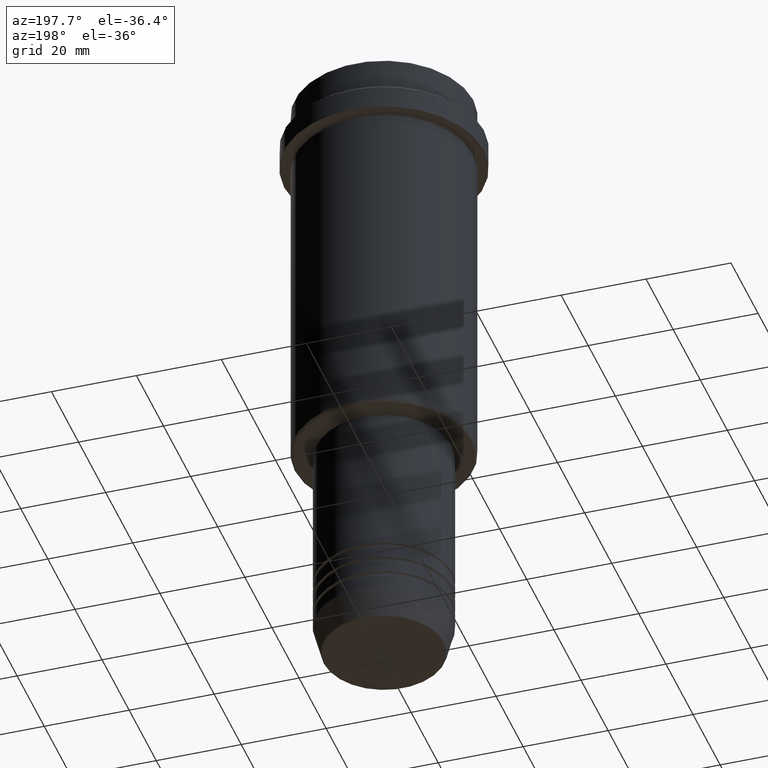
[diagram: clean part render]
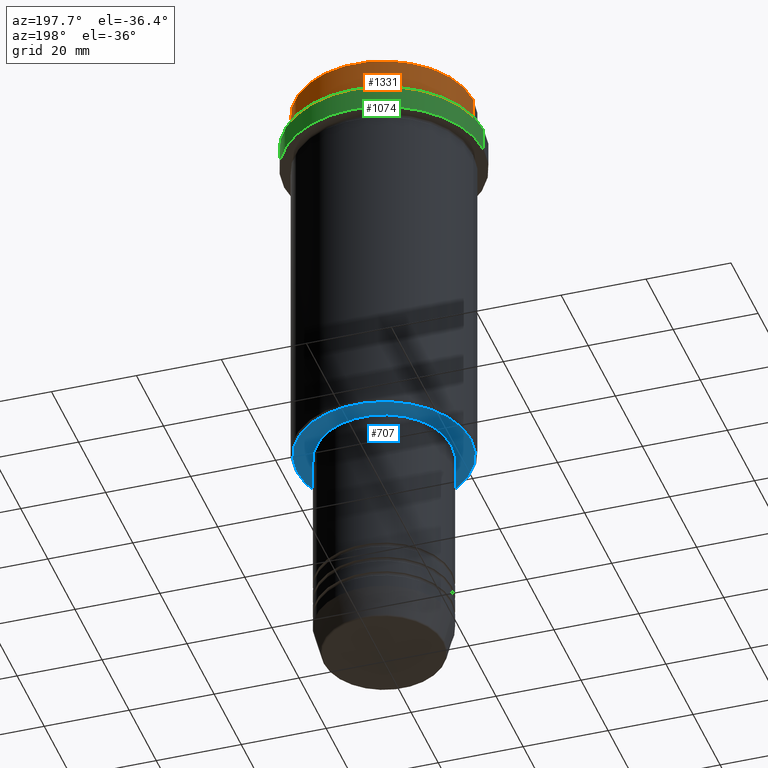
[diagram: same view with three faces highlighted in distinct colors, each labeled with its STEP entity id]
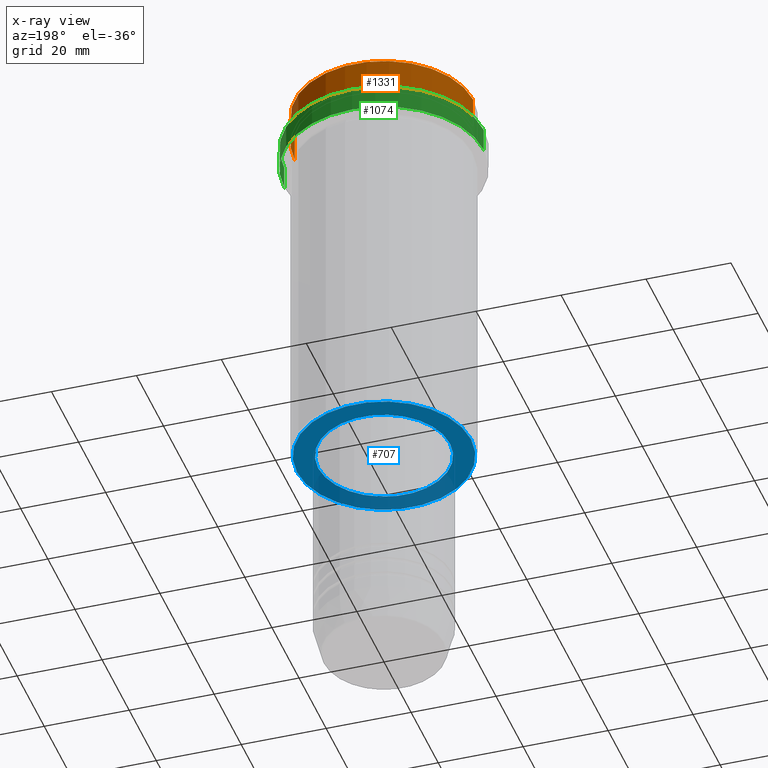
[diagram: x-ray of the same camera — body ghosted, the three highlighted faces saturated]
A machine part, auxiliary view with three faces highlighted in distinct colors.
The next image is the same camera in x-ray (body ghosted, the three faces saturated) — at least one of them is partly hidden behind the body in this view.
Their STEP definitions:

[orange] entity #1331 — the highlighted cylindrical surface (partial cylindrical patch) has radius 21 mm, axis along (-0, -0, 1).
#34 = CYLINDRICAL_SURFACE ( 'NONE', #905, 21.00000000000000000 ) ;
#79 = DIRECTION ( 'NONE',  ( 0.000000000000000000, 0.000000000000000000, -1.000000000000000000 ) ) ;
#93 = DIRECTION ( 'NONE',  ( 1.000000000000000000, 0.000000000000000000, 0.000000000000000000 ) ) ;
#186 = LINE ( 'NONE', #860, #209 ) ;
#190 = DIRECTION ( 'NONE',  ( -0.000000000000000000, -0.000000000000000000, 1.000000000000000000 ) ) ;
#209 = VECTOR ( 'NONE', #1083, 1000.000000000000000 ) ;
#211 = ORIENTED_EDGE ( 'NONE', *, *, #1029, .T. ) ;
#238 = CARTESIAN_POINT ( 'NONE',  ( 21.00000000000000000, 0.000000000000000000, -0.5000000000000108802 ) ) ;
#258 = ORIENTED_EDGE ( 'NONE', *, *, #496, .T. ) ;
#263 = CARTESIAN_POINT ( 'NONE',  ( 21.00000000000000000, 0.000000000000000000, -7.999999999999998224 ) ) ;
#264 = VERTEX_POINT ( 'NONE', #238 ) ;
#321 = CIRCLE ( 'NONE', #734, 21.00000000000000000 ) ;
#391 = CARTESIAN_POINT ( 'NONE',  ( -21.00000000000000000, 2.571758278209441661E-15, -0.5000000000000108802 ) ) ;
#447 = CARTESIAN_POINT ( 'NONE',  ( 0.000000000000000000, 0.000000000000000000, 0.000000000000000000 ) ) ;
#495 = CARTESIAN_POINT ( 'NONE',  ( 0.000000000000000000, 0.000000000000000000, -7.999999999999998224 ) ) ;
#496 = EDGE_CURVE ( 'NONE', #1018, #264, #321, .T. ) ;
#605 = DIRECTION ( 'NONE',  ( -0.000000000000000000, -0.000000000000000000, 1.000000000000000000 ) ) ;
#647 = AXIS2_PLACEMENT_3D ( 'NONE', #495, #944, #93 ) ;
#723 = CARTESIAN_POINT ( 'NONE',  ( 0.000000000000000000, 0.000000000000000000, -0.5000000000000108802 ) ) ;
#725 = CARTESIAN_POINT ( 'NONE',  ( -21.00000000000000000, 2.571758278209441661E-15, 0.000000000000000000 ) ) ;
#728 = EDGE_CURVE ( 'NONE', #1298, #1018, #1412, .T. ) ;
#734 = AXIS2_PLACEMENT_3D ( 'NONE', #723, #79, #1162 ) ;
#788 = CARTESIAN_POINT ( 'NONE',  ( -21.00000000000000000, 2.571758278209441661E-15, -7.999999999999998224 ) ) ;
#860 = CARTESIAN_POINT ( 'NONE',  ( 21.00000000000000000, 0.000000000000000000, 0.000000000000000000 ) ) ;
#897 = DIRECTION ( 'NONE',  ( 1.000000000000000000, 0.000000000000000000, 0.000000000000000000 ) ) ;
#905 = AXIS2_PLACEMENT_3D ( 'NONE', #447, #605, #897 ) ;
#944 = DIRECTION ( 'NONE',  ( -0.000000000000000000, -0.000000000000000000, 1.000000000000000000 ) ) ;
#975 = CIRCLE ( 'NONE', #647, 21.00000000000000000 ) ;
#990 = ORIENTED_EDGE ( 'NONE', *, *, #1009, .F. ) ;
#1009 = EDGE_CURVE ( 'NONE', #1319, #264, #186, .T. ) ;
#1018 = VERTEX_POINT ( 'NONE', #391 ) ;
#1027 = FACE_OUTER_BOUND ( 'NONE', #1321, .T. ) ;
#1029 = EDGE_CURVE ( 'NONE', #1319, #1298, #975, .T. ) ;
#1083 = DIRECTION ( 'NONE',  ( -0.000000000000000000, -0.000000000000000000, 1.000000000000000000 ) ) ;
#1162 = DIRECTION ( 'NONE',  ( 1.000000000000000000, 0.000000000000000000, 0.000000000000000000 ) ) ;
#1218 = VECTOR ( 'NONE', #190, 1000.000000000000000 ) ;
#1298 = VERTEX_POINT ( 'NONE', #788 ) ;
#1319 = VERTEX_POINT ( 'NONE', #263 ) ;
#1321 = EDGE_LOOP ( 'NONE', ( #211, #1342, #258, #990 ) ) ;
#1331 = ADVANCED_FACE ( 'NONE', ( #1027 ), #34, .T. ) ;
#1342 = ORIENTED_EDGE ( 'NONE', *, *, #728, .T. ) ;
#1412 = LINE ( 'NONE', #725, #1218 ) ;

[blue] entity #707 — the highlighted planar face has unit normal (0, 0, -1).
#4 = CIRCLE ( 'NONE', #343, 15.49999999999999645 ) ;
#36 = CARTESIAN_POINT ( 'NONE',  ( 15.49999999999999645, 0.000000000000000000, -95.00000000000000000 ) ) ;
#75 = CARTESIAN_POINT ( 'NONE',  ( 0.000000000000000000, 21.00000000000000000, -95.00000000000000000 ) ) ;
#81 = ORIENTED_EDGE ( 'NONE', *, *, #1163, .T. ) ;
#85 = DIRECTION ( 'NONE',  ( 0.000000000000000000, 0.000000000000000000, -1.000000000000000000 ) ) ;
#99 = AXIS2_PLACEMENT_3D ( 'NONE', #697, #85, #624 ) ;
#106 = CARTESIAN_POINT ( 'NONE',  ( 0.000000000000000000, 0.000000000000000000, -95.00000000000000000 ) ) ;
#139 = AXIS2_PLACEMENT_3D ( 'NONE', #106, #1114, #1413 ) ;
#149 = DIRECTION ( 'NONE',  ( -0.000000000000000000, -0.000000000000000000, 1.000000000000000000 ) ) ;
#160 = EDGE_CURVE ( 'NONE', #838, #629, #756, .T. ) ;
#287 = DIRECTION ( 'NONE',  ( -1.000000000000000000, 0.000000000000000000, -0.000000000000000000 ) ) ;
#294 = DIRECTION ( 'NONE',  ( 0.000000000000000000, 0.000000000000000000, -1.000000000000000000 ) ) ;
#323 = CIRCLE ( 'NONE', #977, 15.49999999999999645 ) ;
#343 = AXIS2_PLACEMENT_3D ( 'NONE', #936, #149, #585 ) ;
#352 = EDGE_CURVE ( 'NONE', #872, #648, #4, .T. ) ;
#386 = CARTESIAN_POINT ( 'NONE',  ( -20.50000000000001776, 2.541142108230759057E-15, -95.00000000000000000 ) ) ;
#533 = FACE_BOUND ( 'NONE', #1028, .T. ) ;
#558 = DIRECTION ( 'NONE',  ( -0.000000000000000000, -0.000000000000000000, 1.000000000000000000 ) ) ;
#585 = DIRECTION ( 'NONE',  ( 1.000000000000000000, 0.000000000000000000, 0.000000000000000000 ) ) ;
#604 = CIRCLE ( 'NONE', #99, 20.50000000000001776 ) ;
#624 = DIRECTION ( 'NONE',  ( -1.000000000000000000, 0.000000000000000000, 0.000000000000000000 ) ) ;
#629 = VERTEX_POINT ( 'NONE', #386 ) ;
#648 = VERTEX_POINT ( 'NONE', #701 ) ;
#697 = CARTESIAN_POINT ( 'NONE',  ( 0.000000000000000000, 0.000000000000000000, -95.00000000000000000 ) ) ;
#698 = ORIENTED_EDGE ( 'NONE', *, *, #1389, .T. ) ;
#701 = CARTESIAN_POINT ( 'NONE',  ( -15.49999999999999645, 1.898202538678397163E-15, -95.00000000000000000 ) ) ;
#707 = ADVANCED_FACE ( 'NONE', ( #1282, #533 ), #731, .T. ) ;
#731 = PLANE ( 'NONE',  #1289 ) ;
#756 = CIRCLE ( 'NONE', #139, 20.50000000000001776 ) ;
#780 = DIRECTION ( 'NONE',  ( 1.000000000000000000, 0.000000000000000000, 0.000000000000000000 ) ) ;
#792 = ORIENTED_EDGE ( 'NONE', *, *, #160, .T. ) ;
#838 = VERTEX_POINT ( 'NONE', #1310 ) ;
#866 = CARTESIAN_POINT ( 'NONE',  ( 0.000000000000000000, 0.000000000000000000, -95.00000000000000000 ) ) ;
#872 = VERTEX_POINT ( 'NONE', #36 ) ;
#936 = CARTESIAN_POINT ( 'NONE',  ( 0.000000000000000000, 0.000000000000000000, -95.00000000000000000 ) ) ;
#977 = AXIS2_PLACEMENT_3D ( 'NONE', #866, #558, #780 ) ;
#1028 = EDGE_LOOP ( 'NONE', ( #1227, #81 ) ) ;
#1114 = DIRECTION ( 'NONE',  ( 0.000000000000000000, 0.000000000000000000, -1.000000000000000000 ) ) ;
#1163 = EDGE_CURVE ( 'NONE', #648, #872, #323, .T. ) ;
#1227 = ORIENTED_EDGE ( 'NONE', *, *, #352, .T. ) ;
#1230 = EDGE_LOOP ( 'NONE', ( #792, #698 ) ) ;
#1282 = FACE_OUTER_BOUND ( 'NONE', #1230, .T. ) ;
#1289 = AXIS2_PLACEMENT_3D ( 'NONE', #75, #294, #287 ) ;
#1310 = CARTESIAN_POINT ( 'NONE',  ( 20.50000000000001776, 0.000000000000000000, -95.00000000000000000 ) ) ;
#1389 = EDGE_CURVE ( 'NONE', #629, #838, #604, .T. ) ;
#1413 = DIRECTION ( 'NONE',  ( -1.000000000000000000, 0.000000000000000000, 0.000000000000000000 ) ) ;

[green] entity #1074 — the highlighted cylindrical surface (partial cylindrical patch) has radius 23.5 mm, axis along (-0, -0, 1).
#150 = CARTESIAN_POINT ( 'NONE',  ( 23.50000000000000355, 0.000000000000000000, -15.00000000000000000 ) ) ;
#162 = CIRCLE ( 'NONE', #1355, 23.50000000000000000 ) ;
#178 = FACE_OUTER_BOUND ( 'NONE', #1208, .T. ) ;
#180 = CARTESIAN_POINT ( 'NONE',  ( -23.50000000000000000, 2.877919977996280320E-15, 0.000000000000000000 ) ) ;
#283 = EDGE_CURVE ( 'NONE', #640, #584, #162, .T. ) ;
#300 = DIRECTION ( 'NONE',  ( 1.000000000000000000, 0.000000000000000000, 0.000000000000000000 ) ) ;
#369 = AXIS2_PLACEMENT_3D ( 'NONE', #399, #1116, #1320 ) ;
#390 = AXIS2_PLACEMENT_3D ( 'NONE', #506, #514, #300 ) ;
#399 = CARTESIAN_POINT ( 'NONE',  ( 0.000000000000000000, 0.000000000000000000, -15.00000000000000000 ) ) ;
#419 = LINE ( 'NONE', #180, #759 ) ;
#506 = CARTESIAN_POINT ( 'NONE',  ( 0.000000000000000000, 0.000000000000000000, 0.000000000000000000 ) ) ;
#511 = VERTEX_POINT ( 'NONE', #1060 ) ;
#514 = DIRECTION ( 'NONE',  ( -0.000000000000000000, -0.000000000000000000, 1.000000000000000000 ) ) ;
#522 = DIRECTION ( 'NONE',  ( -0.000000000000000000, -0.000000000000000000, 1.000000000000000000 ) ) ;
#584 = VERTEX_POINT ( 'NONE', #1030 ) ;
#595 = ORIENTED_EDGE ( 'NONE', *, *, #749, .T. ) ;
#617 = CYLINDRICAL_SURFACE ( 'NONE', #390, 23.50000000000000000 ) ;
#636 = DIRECTION ( 'NONE',  ( -0.000000000000000000, -0.000000000000000000, 1.000000000000000000 ) ) ;
#640 = VERTEX_POINT ( 'NONE', #1023 ) ;
#662 = DIRECTION ( 'NONE',  ( 0.000000000000000000, 0.000000000000000000, -1.000000000000000000 ) ) ;
#749 = EDGE_CURVE ( 'NONE', #511, #640, #419, .T. ) ;
#755 = EDGE_CURVE ( 'NONE', #1309, #584, #869, .T. ) ;
#759 = VECTOR ( 'NONE', #522, 1000.000000000000000 ) ;
#802 = ORIENTED_EDGE ( 'NONE', *, *, #755, .F. ) ;
#828 = EDGE_CURVE ( 'NONE', #1309, #511, #1246, .T. ) ;
#863 = CARTESIAN_POINT ( 'NONE',  ( 23.50000000000000000, 0.000000000000000000, 0.000000000000000000 ) ) ;
#869 = LINE ( 'NONE', #863, #1151 ) ;
#911 = ORIENTED_EDGE ( 'NONE', *, *, #828, .T. ) ;
#1002 = DIRECTION ( 'NONE',  ( 1.000000000000000000, 0.000000000000000000, 0.000000000000000000 ) ) ;
#1023 = CARTESIAN_POINT ( 'NONE',  ( -23.50000000000000000, 2.877919977996280320E-15, -9.499999999999971578 ) ) ;
#1030 = CARTESIAN_POINT ( 'NONE',  ( 23.50000000000000000, 0.000000000000000000, -9.499999999999971578 ) ) ;
#1060 = CARTESIAN_POINT ( 'NONE',  ( -23.50000000000000711, 2.877919977996281109E-15, -15.00000000000000000 ) ) ;
#1074 = ADVANCED_FACE ( 'NONE', ( #178 ), #617, .T. ) ;
#1116 = DIRECTION ( 'NONE',  ( -0.000000000000000000, -0.000000000000000000, 1.000000000000000000 ) ) ;
#1139 = ORIENTED_EDGE ( 'NONE', *, *, #283, .T. ) ;
#1151 = VECTOR ( 'NONE', #636, 1000.000000000000000 ) ;
#1208 = EDGE_LOOP ( 'NONE', ( #911, #595, #1139, #802 ) ) ;
#1211 = CARTESIAN_POINT ( 'NONE',  ( 0.000000000000000000, 0.000000000000000000, -9.499999999999971578 ) ) ;
#1246 = CIRCLE ( 'NONE', #369, 23.50000000000000355 ) ;
#1309 = VERTEX_POINT ( 'NONE', #150 ) ;
#1320 = DIRECTION ( 'NONE',  ( 1.000000000000000000, 0.000000000000000000, 0.000000000000000000 ) ) ;
#1355 = AXIS2_PLACEMENT_3D ( 'NONE', #1211, #662, #1002 ) ;